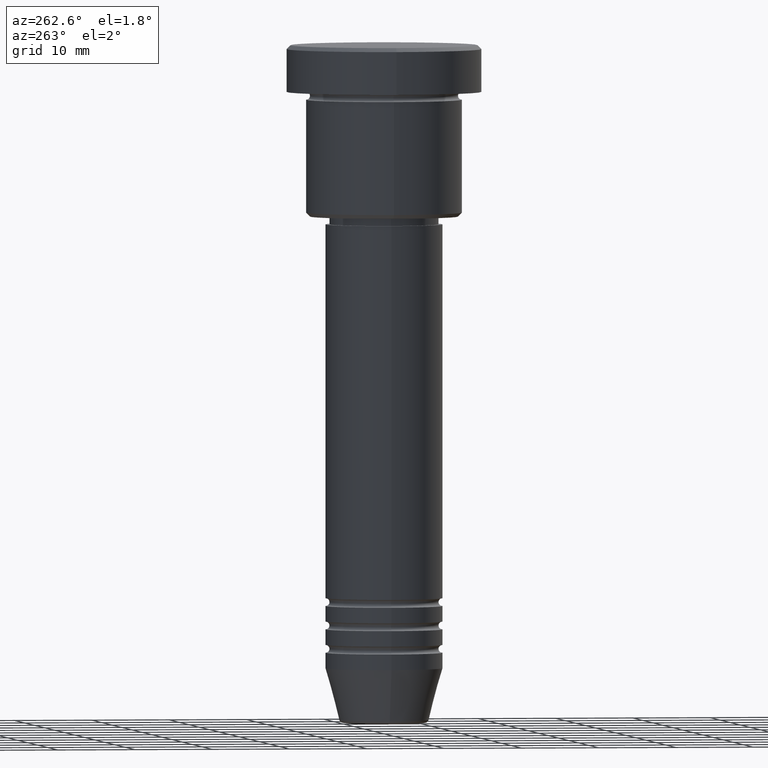
[diagram: clean part render]
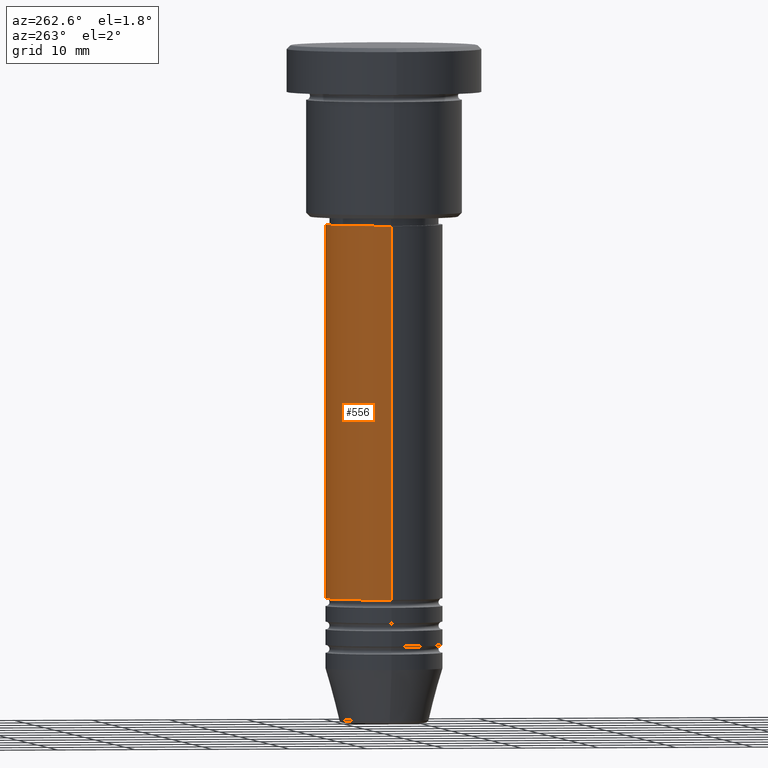
[diagram: same view with one face highlighted and labeled with its STEP entity id]
A machine part, auxiliary view. The second image highlights one B-rep face of the part: STEP entity #556.
In plain terms, the highlighted cylindrical surface (partial cylindrical patch) has radius 7.5 mm, axis along (-0, -0, 1).
Its self-contained STEP definition (entity closure, byte-faithful):
#3 = VERTEX_POINT ( 'NONE', #315 ) ;
#43 = DIRECTION ( 'NONE',  ( -0.000000000000000000, -0.000000000000000000, 1.000000000000000000 ) ) ;
#51 = DIRECTION ( 'NONE',  ( 1.000000000000000000, 0.000000000000000000, 0.000000000000000000 ) ) ;
#56 = CARTESIAN_POINT ( 'NONE',  ( 0.000000000000000000, 0.000000000000000000, 0.000000000000000000 ) ) ;
#173 = CIRCLE ( 'NONE', #942, 7.500000000000000000 ) ;
#181 = CARTESIAN_POINT ( 'NONE',  ( -7.500000000000000000, 9.184850993605147944E-16, 0.000000000000000000 ) ) ;
#293 = EDGE_CURVE ( 'NONE', #729, #763, #568, .T. ) ;
#315 = CARTESIAN_POINT ( 'NONE',  ( 7.500000000000000000, 0.000000000000000000, -70.99999999999997158 ) ) ;
#329 = CARTESIAN_POINT ( 'NONE',  ( 7.500000000000000000, 0.000000000000000000, 0.000000000000000000 ) ) ;
#336 = CARTESIAN_POINT ( 'NONE',  ( -7.500000000000000000, 9.184850993605147944E-16, -70.99999999999997158 ) ) ;
#340 = LINE ( 'NONE', #329, #1012 ) ;
#421 = CARTESIAN_POINT ( 'NONE',  ( -7.500000000000000000, 9.184850993605147944E-16, -22.99999999999996447 ) ) ;
#437 = DIRECTION ( 'NONE',  ( 1.000000000000000000, 0.000000000000000000, 0.000000000000000000 ) ) ;
#442 = DIRECTION ( 'NONE',  ( -0.000000000000000000, -0.000000000000000000, 1.000000000000000000 ) ) ;
#451 = ORIENTED_EDGE ( 'NONE', *, *, #1155, .F. ) ;
#454 = CARTESIAN_POINT ( 'NONE',  ( 0.000000000000000000, 0.000000000000000000, -70.99999999999997158 ) ) ;
#471 = ORIENTED_EDGE ( 'NONE', *, *, #293, .T. ) ;
#517 = DIRECTION ( 'NONE',  ( 1.000000000000000000, 0.000000000000000000, 0.000000000000000000 ) ) ;
#534 = DIRECTION ( 'NONE',  ( -0.000000000000000000, -0.000000000000000000, 1.000000000000000000 ) ) ;
#556 = ADVANCED_FACE ( 'NONE', ( #709 ), #1073, .T. ) ;
#568 = LINE ( 'NONE', #181, #825 ) ;
#594 = CIRCLE ( 'NONE', #630, 7.500000000000000000 ) ;
#610 = EDGE_CURVE ( 'NONE', #3, #729, #594, .T. ) ;
#630 = AXIS2_PLACEMENT_3D ( 'NONE', #454, #442, #517 ) ;
#670 = EDGE_LOOP ( 'NONE', ( #741, #471, #451, #839 ) ) ;
#709 = FACE_OUTER_BOUND ( 'NONE', #670, .T. ) ;
#729 = VERTEX_POINT ( 'NONE', #336 ) ;
#741 = ORIENTED_EDGE ( 'NONE', *, *, #610, .T. ) ;
#754 = CARTESIAN_POINT ( 'NONE',  ( 7.500000000000000000, 0.000000000000000000, -22.99999999999996447 ) ) ;
#763 = VERTEX_POINT ( 'NONE', #421 ) ;
#792 = CARTESIAN_POINT ( 'NONE',  ( 0.000000000000000000, 0.000000000000000000, -22.99999999999996447 ) ) ;
#798 = EDGE_CURVE ( 'NONE', #3, #994, #340, .T. ) ;
#825 = VECTOR ( 'NONE', #1102, 1000.000000000000000 ) ;
#839 = ORIENTED_EDGE ( 'NONE', *, *, #798, .F. ) ;
#942 = AXIS2_PLACEMENT_3D ( 'NONE', #792, #43, #51 ) ;
#975 = AXIS2_PLACEMENT_3D ( 'NONE', #56, #534, #437 ) ;
#994 = VERTEX_POINT ( 'NONE', #754 ) ;
#1012 = VECTOR ( 'NONE', #1076, 1000.000000000000000 ) ;
#1073 = CYLINDRICAL_SURFACE ( 'NONE', #975, 7.500000000000000000 ) ;
#1076 = DIRECTION ( 'NONE',  ( -0.000000000000000000, -0.000000000000000000, 1.000000000000000000 ) ) ;
#1102 = DIRECTION ( 'NONE',  ( -0.000000000000000000, -0.000000000000000000, 1.000000000000000000 ) ) ;
#1155 = EDGE_CURVE ( 'NONE', #994, #763, #173, .T. ) ;